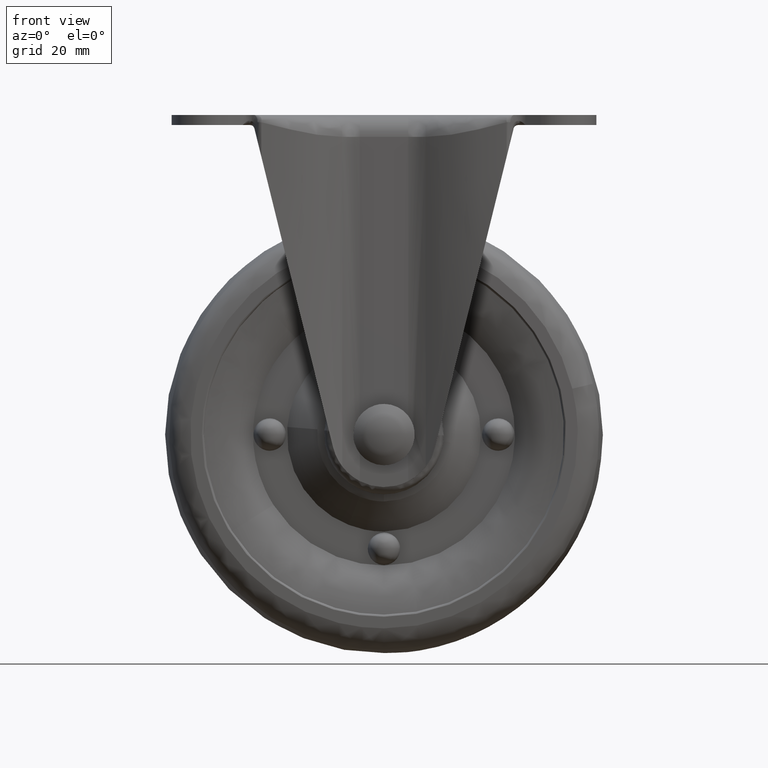
[diagram: clean part render]
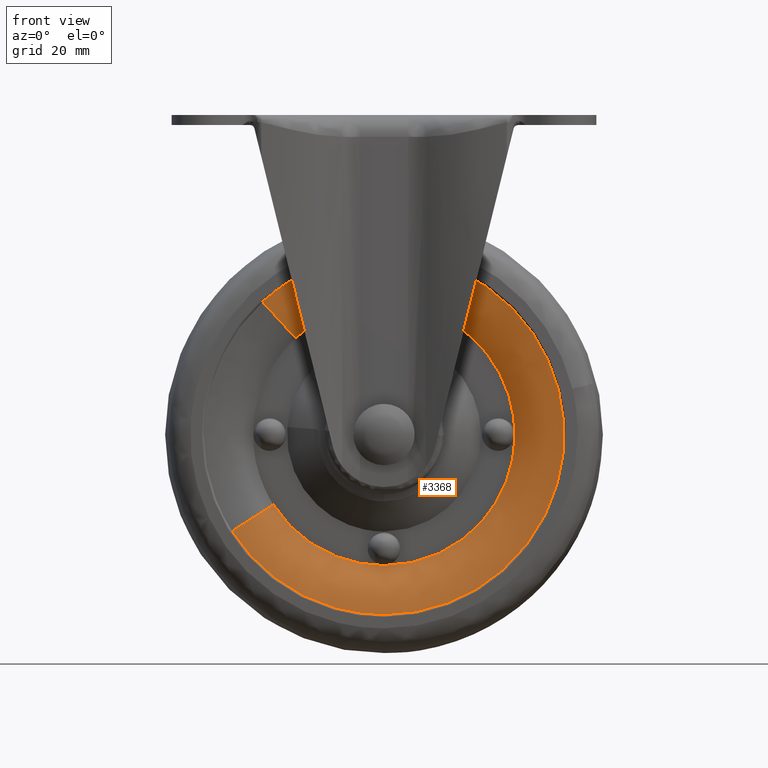
[diagram: same view with one face highlighted and labeled with its STEP entity id]
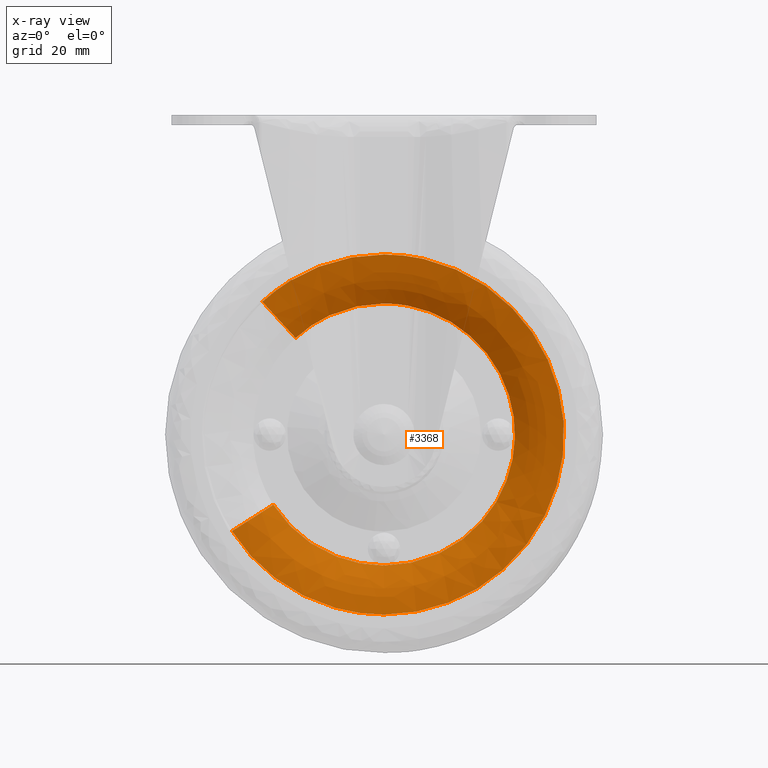
[diagram: x-ray of the same camera — body ghosted, the highlighted face saturated]
A machine part, front view. The second image highlights one B-rep face of the part: STEP entity #3368.
The next image is the same camera in x-ray: the body ghosted, the highlighted face saturated — about 0% of this face is hidden behind the body in this view.
In plain terms, the highlighted face is a freeform B-spline surface patch.
Its self-contained STEP definition (entity closure, byte-faithful):
#3090=CARTESIAN_POINT('',(-27.773530414643702,-10.499999999976991,-42.669261214904353));
#3091=VERTEX_POINT('',#3090);
#3105=CARTESIAN_POINT('',(0.0,-10.500000000000000,-31.874306000000001));
#3106=VERTEX_POINT('',#3105);
#3107=CARTESIAN_POINT('',(0.0,-10.500000000000000,-31.874306000000001));
#3108=CARTESIAN_POINT('',(-15.984645029453844,-10.500000000000000,-31.874305999999997));
#3109=CARTESIAN_POINT('',(-27.773530414643698,-10.499999999976989,-42.669261214904346));
#3117=(BOUNDED_CURVE()B_SPLINE_CURVE(2,(#3107,#3108,#3109),.UNSPECIFIED.,.F.,.U.)B_SPLINE_CURVE_WITH_KNOTS((3,3),(0.500000000000000,0.618362513836627),.UNSPECIFIED.)CURVE()GEOMETRIC_REPRESENTATION_ITEM()RATIONAL_B_SPLINE_CURVE((1.0,0.861329689342154,0.853966311196057))REPRESENTATION_ITEM(''));
#3118=EDGE_CURVE('',#3106,#3091,#3117,.T.);
#3120=CARTESIAN_POINT('',(40.850630503308849,-10.500000005373479,-77.748546563293544));
#3121=VERTEX_POINT('',#3120);
#3122=CARTESIAN_POINT('',(40.850630503308842,-10.500000005373485,-77.748546563293544));
#3123=CARTESIAN_POINT('',(41.125693999999989,-10.499999999999996,-75.382239922218503));
#3124=CARTESIAN_POINT('',(41.125694000000003,-10.500000000000000,-73.0));
#3125=CARTESIAN_POINT('',(41.125693999999989,-10.500000000000000,-31.874306000000004));
#3126=CARTESIAN_POINT('',(0.0,-10.500000000000000,-31.874306000000001));
#3134=(BOUNDED_CURVE()B_SPLINE_CURVE(2,(#3122,#3123,#3124,#3125,#3126),.UNSPECIFIED.,.F.,.U.)B_SPLINE_CURVE_WITH_KNOTS((3,2,3),(0.229999999999648,0.250000000000000,0.500000000000000),.UNSPECIFIED.)CURVE()GEOMETRIC_REPRESENTATION_ITEM()RATIONAL_B_SPLINE_CURVE((0.956886118189967,0.976568542494512,1.0,0.707106781186547,1.0))REPRESENTATION_ITEM(''));
#3135=EDGE_CURVE('',#3121,#3106,#3134,.T.);
#3192=CARTESIAN_POINT('',(0.0,-10.500000000000000,-114.125694000000000));
#3193=VERTEX_POINT('',#3192);
#3194=CARTESIAN_POINT('',(0.0,-10.500000000000000,-114.125694000000000));
#3195=CARTESIAN_POINT('',(36.622089197671748,-10.500000000000000,-114.125694000000000));
#3196=CARTESIAN_POINT('',(40.850630503308849,-10.500000005373485,-77.748546563293544));
#3204=(BOUNDED_CURVE()B_SPLINE_CURVE(2,(#3194,#3195,#3196),.UNSPECIFIED.,.F.,.U.)B_SPLINE_CURVE_WITH_KNOTS((3,3),(0.0,0.229999999999648),.UNSPECIFIED.)CURVE()GEOMETRIC_REPRESENTATION_ITEM()RATIONAL_B_SPLINE_CURVE((1.0,0.730538238692036,0.956886118189967))REPRESENTATION_ITEM(''));
#3205=EDGE_CURVE('',#3193,#3121,#3204,.T.);
#3207=CARTESIAN_POINT('',(-34.712704701442732,-10.499999999981650,-95.053363445541123));
#3208=VERTEX_POINT('',#3207);
#3209=CARTESIAN_POINT('',(-34.712704701442732,-10.499999999981647,-95.053363445541123));
#3210=CARTESIAN_POINT('',(-22.595843135188641,-10.500000000000000,-114.125694000000000));
#3211=CARTESIAN_POINT('',(0.0,-10.500000000000000,-114.125694000000000));
#3219=(BOUNDED_CURVE()B_SPLINE_CURVE(2,(#3209,#3210,#3211),.UNSPECIFIED.,.F.,.U.)B_SPLINE_CURVE_WITH_KNOTS((3,3),(0.841758829069475,1.0),.UNSPECIFIED.)CURVE()GEOMETRIC_REPRESENTATION_ITEM()RATIONAL_B_SPLINE_CURVE((0.863909864665171,0.814608936389395,1.0))REPRESENTATION_ITEM(''));
#3220=EDGE_CURVE('',#3208,#3193,#3219,.T.);
#3252=CARTESIAN_POINT('',(-35.220559750921275,-10.519551567635451,-95.376017877815599));
#3253=CARTESIAN_POINT('',(-33.252729866850565,-10.519551567635451,-98.473444345296045));
#3254=CARTESIAN_POINT('',(-30.774488013609741,-10.519551567635453,-101.179866797710910));
#3255=CARTESIAN_POINT('',(-2.594621215898836,-10.519551567635453,-131.954354811320630));
#3256=CARTESIAN_POINT('',(28.179866797710918,-10.519551567635453,-103.774488013609740));
#3257=CARTESIAN_POINT('',(58.954354811320655,-10.519551567635453,-75.594621215898840));
#3258=CARTESIAN_POINT('',(30.774488013609755,-10.519551567635453,-44.820133202289092));
#3259=CARTESIAN_POINT('',(2.594621215898843,-10.519551567635453,-14.045645188679327));
#3260=CARTESIAN_POINT('',(-28.179866797710908,-10.519551567635453,-42.225511986390238));
#3261=CARTESIAN_POINT('',(-29.253192685556339,-10.405115268689899,-91.584882442081906));
#3262=CARTESIAN_POINT('',(-27.618769292566103,-10.405115268689903,-94.157516549073279));
#3263=CARTESIAN_POINT('',(-25.560412271355858,-10.405115268689903,-96.405393869845781));
#3264=CARTESIAN_POINT('',(-2.155018401510095,-10.405115268689903,-121.965806141201610));
#3265=CARTESIAN_POINT('',(23.405393869845767,-10.405115268689903,-98.560412271355858));
#3266=CARTESIAN_POINT('',(48.965806141201604,-10.405115268689903,-75.155018401510091));
#3267=CARTESIAN_POINT('',(25.560412271355858,-10.405115268689903,-49.594606130154247));
#3268=CARTESIAN_POINT('',(2.155018401510100,-10.405115268689903,-24.034193858798389));
#3269=CARTESIAN_POINT('',(-23.405393869845767,-10.405115268689903,-47.439587728644149));
#3270=CARTESIAN_POINT('',(-24.875951102270456,-5.598706593954534,-88.803971615684262));
#3271=CARTESIAN_POINT('',(-23.486091306744388,-5.598706593954536,-90.991654886274702));
#3272=CARTESIAN_POINT('',(-21.735732323332549,-5.598706593954535,-92.903175687320399));
#3273=CARTESIAN_POINT('',(-1.832556636012144,-5.598706593954535,-114.638908010652930));
#3274=CARTESIAN_POINT('',(19.903175687320406,-5.598706593954535,-94.735732323332542));
#3275=CARTESIAN_POINT('',(41.638908010652948,-5.598706593954535,-74.832556636012143));
#3276=CARTESIAN_POINT('',(21.735732323332549,-5.598706593954535,-53.096824312679601));
#3277=CARTESIAN_POINT('',(1.832556636012149,-5.598706593954535,-31.361091989347052));
#3278=CARTESIAN_POINT('',(-19.903175687320406,-5.598706593954535,-51.264267676667458));
#3286=(BOUNDED_SURFACE()B_SPLINE_SURFACE(2,2,((#3252,#3261,#3270),(#3253,#3262,#3271),(#3254,#3263,#3272),(#3255,#3264,#3273),(#3256,#3265,#3274),(#3257,#3266,#3275),(#3258,#3267,#3276),(#3259,#3268,#3277),(#3260,#3269,#3278)),.UNSPECIFIED.,.F.,.F.,.U.)B_SPLINE_SURFACE_WITH_KNOTS((3,2,2,2,3),(3,3),(0.0,8.296333949508409,77.432516128813091,146.568698308117800,215.704880487422510),(0.0,13.658115818088140),.UNSPECIFIED.)GEOMETRIC_REPRESENTATION_ITEM()RATIONAL_B_SPLINE_SURFACE(((0.877676456310107,0.820392945818088,0.879242004126378),(0.902666683382142,0.843752130010498,0.904276807300619),(0.935548551205791,0.874487889428331,0.937217327872665),(0.661532724686865,0.618356316680285,0.662712727984297),(0.935548551205791,0.874487889428331,0.937217327872665),(0.661532724686865,0.618356316680285,0.662712727984297),(0.935548551205791,0.874487889428331,0.937217327872665),(0.661532724686865,0.618356316680285,0.662712727984297),(0.935548551205791,0.874487889428331,0.937217327872665)))REPRESENTATION_ITEM('')SURFACE());
#3287=ORIENTED_EDGE('',*,*,#3220,.T.);
#3288=ORIENTED_EDGE('',*,*,#3205,.T.);
#3289=ORIENTED_EDGE('',*,*,#3135,.T.);
#3290=ORIENTED_EDGE('',*,*,#3118,.T.);
#3291=CARTESIAN_POINT('',(-20.205294442425661,-6.000000000315141,-50.934331766272763));
#3292=VERTEX_POINT('',#3291);
#3293=CARTESIAN_POINT('',(-27.773530414643698,-10.499999999976989,-42.669261214904360));
#3294=CARTESIAN_POINT('',(-23.463750365354265,-10.188443240959364,-47.375858141686400));
#3295=CARTESIAN_POINT('',(-20.205294442425668,-6.000000000315142,-50.934331766272770));
#3303=(BOUNDED_CURVE()B_SPLINE_CURVE(2,(#3293,#3294,#3295),.UNSPECIFIED.,.F.,.U.)B_SPLINE_CURVE_WITH_KNOTS((3,3),(-1.512383064353254,-0.472193556692200),.UNSPECIFIED.)CURVE()GEOMETRIC_REPRESENTATION_ITEM()RATIONAL_B_SPLINE_CURVE((0.930257913225997,0.879854309675433,0.931775125507820))REPRESENTATION_ITEM(''));
#3304=EDGE_CURVE('',#3091,#3292,#3303,.T.);
#3305=ORIENTED_EDGE('',*,*,#3304,.T.);
#3306=CARTESIAN_POINT('',(0.0,-6.000000000000150,-43.080981999999999));
#3307=VERTEX_POINT('',#3306);
#3308=CARTESIAN_POINT('',(0.0,-6.000000000000150,-43.080981999999999));
#3309=CARTESIAN_POINT('',(-11.628858648809272,-6.000000000000149,-43.080981999999999));
#3310=CARTESIAN_POINT('',(-20.205294442425664,-6.000000000315141,-50.934331766272763));
#3318=(BOUNDED_CURVE()B_SPLINE_CURVE(2,(#3308,#3309,#3310),.UNSPECIFIED.,.F.,.U.)B_SPLINE_CURVE_WITH_KNOTS((3,3),(0.500000000000000,0.618362513836701),.UNSPECIFIED.)CURVE()GEOMETRIC_REPRESENTATION_ITEM()RATIONAL_B_SPLINE_CURVE((1.0,0.861329689342068,0.853966311196048))REPRESENTATION_ITEM(''));
#3319=EDGE_CURVE('',#3307,#3292,#3318,.T.);
#3320=ORIENTED_EDGE('',*,*,#3319,.F.);
#3321=CARTESIAN_POINT('',(0.0,-6.000000000000150,-102.919017999999990));
#3322=VERTEX_POINT('',#3321);
#3323=CARTESIAN_POINT('',(0.0,-6.000000000000150,-102.919017999999990));
#3324=CARTESIAN_POINT('',(29.919017999999991,-6.000000000000150,-102.919017999999980));
#3325=CARTESIAN_POINT('',(29.919018000000001,-6.000000000000150,-73.0));
#3326=CARTESIAN_POINT('',(29.919017999999991,-6.000000000000150,-43.080982000000006));
#3327=CARTESIAN_POINT('',(0.0,-6.000000000000150,-43.080981999999999));
#3335=(BOUNDED_CURVE()B_SPLINE_CURVE(2,(#3323,#3324,#3325,#3326,#3327),.UNSPECIFIED.,.F.,.U.)B_SPLINE_CURVE_WITH_KNOTS((3,2,3),(0.0,0.250000000000000,0.500000000000000),.UNSPECIFIED.)CURVE()GEOMETRIC_REPRESENTATION_ITEM()RATIONAL_B_SPLINE_CURVE((1.0,0.707106781186548,1.0,0.707106781186548,1.0))REPRESENTATION_ITEM(''));
#3336=EDGE_CURVE('',#3322,#3307,#3335,.T.);
#3337=ORIENTED_EDGE('',*,*,#3336,.F.);
#3338=CARTESIAN_POINT('',(-25.253556494603082,-6.000000000206195,-89.043862454920813));
#3339=VERTEX_POINT('',#3338);
#3340=CARTESIAN_POINT('',(-25.253556494603078,-6.000000000206194,-89.043862454920813));
#3341=CARTESIAN_POINT('',(-16.438517426272941,-6.000000000000149,-102.919017999999980));
#3342=CARTESIAN_POINT('',(0.0,-6.000000000000150,-102.919017999999990));
#3350=(BOUNDED_CURVE()B_SPLINE_CURVE(2,(#3340,#3341,#3342),.UNSPECIFIED.,.F.,.U.)B_SPLINE_CURVE_WITH_KNOTS((3,3),(0.841758829069535,1.0),.UNSPECIFIED.)CURVE()GEOMETRIC_REPRESENTATION_ITEM()RATIONAL_B_SPLINE_CURVE((0.863909864665134,0.814608936389466,1.0))REPRESENTATION_ITEM(''));
#3351=EDGE_CURVE('',#3339,#3322,#3350,.T.);
#3352=ORIENTED_EDGE('',*,*,#3351,.F.);
#3353=CARTESIAN_POINT('',(-34.712704701442725,-10.499999999981647,-95.053363445541123));
#3354=CARTESIAN_POINT('',(-29.326132668707370,-10.188443241020423,-91.631214932814075));
#3355=CARTESIAN_POINT('',(-25.253556494603071,-6.000000000206195,-89.043862454920813));
#3363=(BOUNDED_CURVE()B_SPLINE_CURVE(2,(#3353,#3354,#3355),.UNSPECIFIED.,.F.,.U.)B_SPLINE_CURVE_WITH_KNOTS((3,3),(-1.512383064369701,-0.472193556663547),.UNSPECIFIED.)CURVE()GEOMETRIC_REPRESENTATION_ITEM()RATIONAL_B_SPLINE_CURVE((0.872713044494451,0.825427359862321,0.874136403470378))REPRESENTATION_ITEM(''));
#3364=EDGE_CURVE('',#3208,#3339,#3363,.T.);
#3365=ORIENTED_EDGE('',*,*,#3364,.F.);
#3366=EDGE_LOOP('',(#3287,#3288,#3289,#3290,#3305,#3320,#3337,#3352,#3365));
#3367=FACE_OUTER_BOUND('',#3366,.T.);
#3368=ADVANCED_FACE('',(#3367),#3286,.T.);